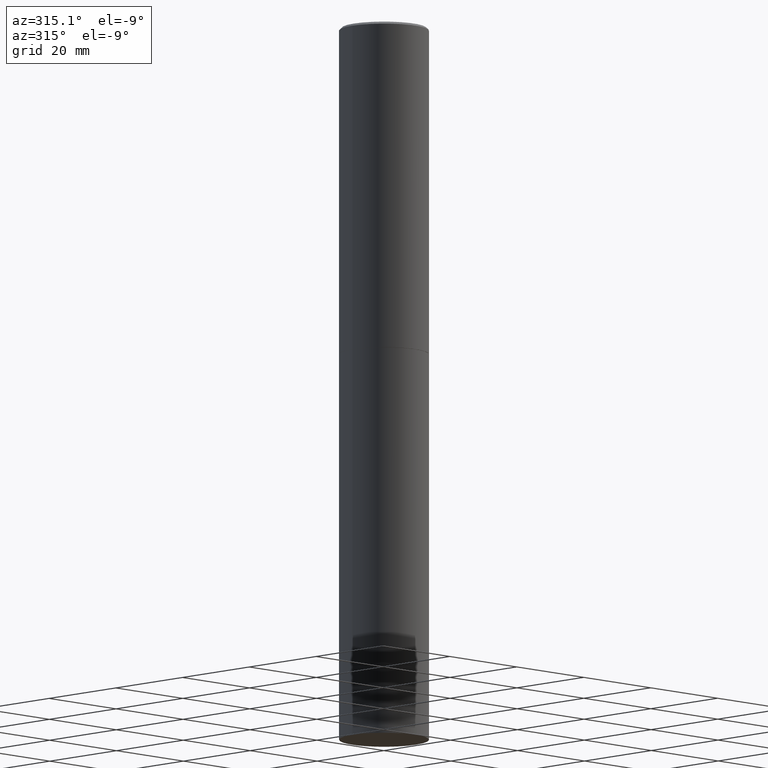
[diagram: clean part render]
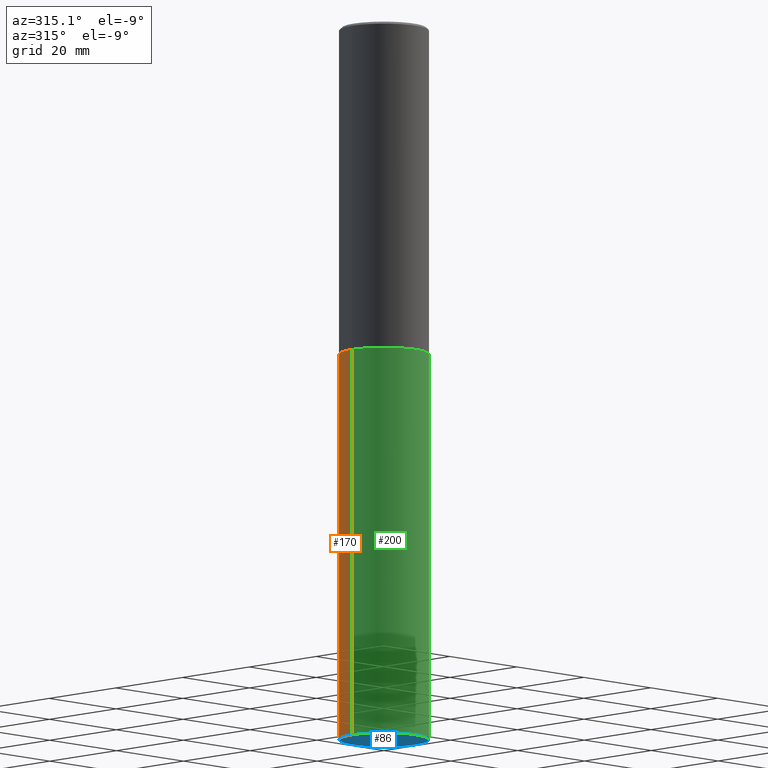
[diagram: same view with three faces highlighted in distinct colors, each labeled with its STEP entity id]
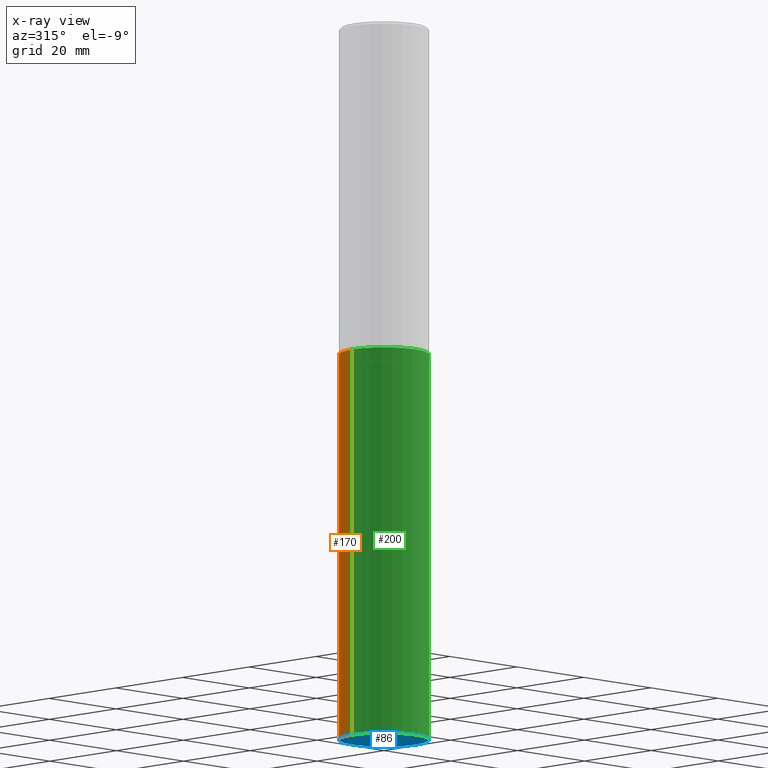
[diagram: x-ray of the same camera — body ghosted, the three highlighted faces saturated]
A machine part, auxiliary view with three faces highlighted in distinct colors.
The next image is the same camera in x-ray (body ghosted, the three faces saturated) — at least one of them is partly hidden behind the body in this view.
Their STEP definitions:

[orange] entity #170 — the highlighted cylindrical surface (partial cylindrical patch) has radius 9.525 mm, axis along (-0, 0, 1).
#1 = EDGE_CURVE ( 'NONE', #173, #246, #187, .T. ) ;
#12 = AXIS2_PLACEMENT_3D ( 'NONE', #132, #328, #108 ) ;
#22 = ORIENTED_EDGE ( 'NONE', *, *, #1, .T. ) ;
#24 = AXIS2_PLACEMENT_3D ( 'NONE', #232, #67, #288 ) ;
#31 = ORIENTED_EDGE ( 'NONE', *, *, #116, .F. ) ;
#32 = VECTOR ( 'NONE', #100, 39.37007874015748143 ) ;
#41 = EDGE_LOOP ( 'NONE', ( #22, #205, #158, #31 ) ) ;
#45 = DIRECTION ( 'NONE',  ( 1.000000000000000000, -6.982962677686265922E-15, 4.876176775795935793E-29 ) ) ;
#62 = EDGE_CURVE ( 'NONE', #246, #344, #126, .T. ) ;
#67 = DIRECTION ( 'NONE',  ( -2.445468806185136597E-29, 3.491481338843145583E-15, 1.000000000000000000 ) ) ;
#71 = CARTESIAN_POINT ( 'NONE',  ( 0.3750000000000000555, -2.356749903719122272E-14, -6.000000000000000888 ) ) ;
#94 = EDGE_CURVE ( 'NONE', #363, #344, #235, .T. ) ;
#100 = DIRECTION ( 'NONE',  ( -2.445468806185136877E-29, 3.491481338843145188E-15, 1.000000000000000000 ) ) ;
#108 = DIRECTION ( 'NONE',  ( 1.000000000000000000, -6.982962677686266711E-15, 0.000000000000000000 ) ) ;
#111 = LINE ( 'NONE', #242, #343 ) ;
#116 = EDGE_CURVE ( 'NONE', #173, #363, #111, .T. ) ;
#126 = LINE ( 'NONE', #237, #32 ) ;
#132 = CARTESIAN_POINT ( 'NONE',  ( 6.725039217009124520E-29, -9.601573681818649859E-15, -2.750000000000000000 ) ) ;
#158 = ORIENTED_EDGE ( 'NONE', *, *, #94, .F. ) ;
#159 = CYLINDRICAL_SURFACE ( 'NONE', #203, 0.3750000000000000555 ) ;
#162 = CARTESIAN_POINT ( 'NONE',  ( 0.3750000000000000555, -1.222018468595100145E-14, -2.750000000000000000 ) ) ;
#170 = ADVANCED_FACE ( 'NONE', ( #361 ), #159, .T. ) ;
#173 = VERTEX_POINT ( 'NONE', #71 ) ;
#187 = CIRCLE ( 'NONE', #24, 0.3750000000000000555 ) ;
#203 = AXIS2_PLACEMENT_3D ( 'NONE', #362, #326, #45 ) ;
#205 = ORIENTED_EDGE ( 'NONE', *, *, #62, .T. ) ;
#232 = CARTESIAN_POINT ( 'NONE',  ( 1.467281283711081958E-28, -2.094888803305887271E-14, -6.000000000000000888 ) ) ;
#235 = CIRCLE ( 'NONE', #12, 0.3750000000000000555 ) ;
#237 = CARTESIAN_POINT ( 'NONE',  ( -0.3750000000000000555, 2.664535259100376091E-15, -1.844600658845589598E-29 ) ) ;
#239 = DIRECTION ( 'NONE',  ( -2.445468806185136877E-29, 3.491481338843145188E-15, 1.000000000000000000 ) ) ;
#242 = CARTESIAN_POINT ( 'NONE',  ( 0.3750000000000000555, -2.618611004132350016E-15, 1.828566290923476203E-29 ) ) ;
#246 = VERTEX_POINT ( 'NONE', #292 ) ;
#288 = DIRECTION ( 'NONE',  ( 1.000000000000000000, -6.982962677686261189E-15, 0.000000000000000000 ) ) ;
#292 = CARTESIAN_POINT ( 'NONE',  ( -0.3750000000000000555, -1.261069559833838480E-14, -6.000000000000000888 ) ) ;
#318 = CARTESIAN_POINT ( 'NONE',  ( -0.3750000000000000555, -1.261069559833838480E-14, -2.750000000000000000 ) ) ;
#326 = DIRECTION ( 'NONE',  ( -2.445468806185136597E-29, 3.491481338843145583E-15, 1.000000000000000000 ) ) ;
#328 = DIRECTION ( 'NONE',  ( -2.445468806185136597E-29, 3.491481338843145583E-15, 1.000000000000000000 ) ) ;
#343 = VECTOR ( 'NONE', #239, 39.37007874015748143 ) ;
#344 = VERTEX_POINT ( 'NONE', #318 ) ;
#361 = FACE_OUTER_BOUND ( 'NONE', #41, .T. ) ;
#362 = CARTESIAN_POINT ( 'NONE',  ( 0.000000000000000000, 0.000000000000000000, 0.000000000000000000 ) ) ;
#363 = VERTEX_POINT ( 'NONE', #162 ) ;

[blue] entity #86 — the highlighted planar face has unit normal (0, -0, -1).
#1 = EDGE_CURVE ( 'NONE', #173, #246, #187, .T. ) ;
#24 = AXIS2_PLACEMENT_3D ( 'NONE', #232, #67, #288 ) ;
#67 = DIRECTION ( 'NONE',  ( -2.445468806185136597E-29, 3.491481338843145583E-15, 1.000000000000000000 ) ) ;
#71 = CARTESIAN_POINT ( 'NONE',  ( 0.3750000000000000555, -2.356749903719122272E-14, -6.000000000000000888 ) ) ;
#73 = DIRECTION ( 'NONE',  ( -2.445468806185136597E-29, 3.491481338843145583E-15, 1.000000000000000000 ) ) ;
#86 = ADVANCED_FACE ( 'NONE', ( #106 ), #103, .T. ) ;
#88 = AXIS2_PLACEMENT_3D ( 'NONE', #184, #212, #216 ) ;
#101 = DIRECTION ( 'NONE',  ( 1.000000000000000000, -6.982962677686261189E-15, 0.000000000000000000 ) ) ;
#103 = PLANE ( 'NONE',  #88 ) ;
#106 = FACE_OUTER_BOUND ( 'NONE', #324, .T. ) ;
#143 = AXIS2_PLACEMENT_3D ( 'NONE', #290, #73, #101 ) ;
#173 = VERTEX_POINT ( 'NONE', #71 ) ;
#175 = ORIENTED_EDGE ( 'NONE', *, *, #1, .F. ) ;
#184 = CARTESIAN_POINT ( 'NONE',  ( 2.618611004132496745E-15, 0.3749999999999790723, -6.000000000000001776 ) ) ;
#187 = CIRCLE ( 'NONE', #24, 0.3750000000000000555 ) ;
#212 = DIRECTION ( 'NONE',  ( 2.438088387897960049E-29, -3.491481338843145188E-15, -1.000000000000000000 ) ) ;
#216 = DIRECTION ( 'NONE',  ( -1.000000000000000000, 6.982962677686265922E-15, -4.876176775795935793E-29 ) ) ;
#232 = CARTESIAN_POINT ( 'NONE',  ( 1.467281283711081958E-28, -2.094888803305887271E-14, -6.000000000000000888 ) ) ;
#246 = VERTEX_POINT ( 'NONE', #292 ) ;
#250 = EDGE_CURVE ( 'NONE', #246, #173, #317, .T. ) ;
#288 = DIRECTION ( 'NONE',  ( 1.000000000000000000, -6.982962677686261189E-15, 0.000000000000000000 ) ) ;
#290 = CARTESIAN_POINT ( 'NONE',  ( 1.467281283711081958E-28, -2.094888803305887271E-14, -6.000000000000000888 ) ) ;
#292 = CARTESIAN_POINT ( 'NONE',  ( -0.3750000000000000555, -1.261069559833838480E-14, -6.000000000000000888 ) ) ;
#317 = CIRCLE ( 'NONE', #143, 0.3750000000000000555 ) ;
#319 = ORIENTED_EDGE ( 'NONE', *, *, #250, .F. ) ;
#324 = EDGE_LOOP ( 'NONE', ( #175, #319 ) ) ;

[green] entity #200 — the highlighted cylindrical surface (partial cylindrical patch) has radius 9.525 mm, axis along (-0, 0, 1).
#2 = DIRECTION ( 'NONE',  ( -2.445468806185136597E-29, 3.491481338843145583E-15, 1.000000000000000000 ) ) ;
#7 = CIRCLE ( 'NONE', #271, 0.3750000000000000555 ) ;
#16 = DIRECTION ( 'NONE',  ( 1.000000000000000000, -6.982962677686266711E-15, 0.000000000000000000 ) ) ;
#32 = VECTOR ( 'NONE', #100, 39.37007874015748143 ) ;
#62 = EDGE_CURVE ( 'NONE', #246, #344, #126, .T. ) ;
#71 = CARTESIAN_POINT ( 'NONE',  ( 0.3750000000000000555, -2.356749903719122272E-14, -6.000000000000000888 ) ) ;
#73 = DIRECTION ( 'NONE',  ( -2.445468806185136597E-29, 3.491481338843145583E-15, 1.000000000000000000 ) ) ;
#90 = ORIENTED_EDGE ( 'NONE', *, *, #250, .T. ) ;
#95 = EDGE_LOOP ( 'NONE', ( #121, #90, #286, #332 ) ) ;
#100 = DIRECTION ( 'NONE',  ( -2.445468806185136877E-29, 3.491481338843145188E-15, 1.000000000000000000 ) ) ;
#101 = DIRECTION ( 'NONE',  ( 1.000000000000000000, -6.982962677686261189E-15, 0.000000000000000000 ) ) ;
#102 = AXIS2_PLACEMENT_3D ( 'NONE', #298, #155, #277 ) ;
#111 = LINE ( 'NONE', #242, #343 ) ;
#116 = EDGE_CURVE ( 'NONE', #173, #363, #111, .T. ) ;
#121 = ORIENTED_EDGE ( 'NONE', *, *, #62, .F. ) ;
#126 = LINE ( 'NONE', #237, #32 ) ;
#143 = AXIS2_PLACEMENT_3D ( 'NONE', #290, #73, #101 ) ;
#155 = DIRECTION ( 'NONE',  ( -2.445468806185136597E-29, 3.491481338843145583E-15, 1.000000000000000000 ) ) ;
#157 = CYLINDRICAL_SURFACE ( 'NONE', #102, 0.3750000000000000555 ) ;
#162 = CARTESIAN_POINT ( 'NONE',  ( 0.3750000000000000555, -1.222018468595100145E-14, -2.750000000000000000 ) ) ;
#168 = EDGE_CURVE ( 'NONE', #344, #363, #7, .T. ) ;
#173 = VERTEX_POINT ( 'NONE', #71 ) ;
#200 = ADVANCED_FACE ( 'NONE', ( #304 ), #157, .T. ) ;
#237 = CARTESIAN_POINT ( 'NONE',  ( -0.3750000000000000555, 2.664535259100376091E-15, -1.844600658845589598E-29 ) ) ;
#239 = DIRECTION ( 'NONE',  ( -2.445468806185136877E-29, 3.491481338843145188E-15, 1.000000000000000000 ) ) ;
#242 = CARTESIAN_POINT ( 'NONE',  ( 0.3750000000000000555, -2.618611004132350016E-15, 1.828566290923476203E-29 ) ) ;
#243 = CARTESIAN_POINT ( 'NONE',  ( 6.725039217009124520E-29, -9.601573681818649859E-15, -2.750000000000000000 ) ) ;
#246 = VERTEX_POINT ( 'NONE', #292 ) ;
#250 = EDGE_CURVE ( 'NONE', #246, #173, #317, .T. ) ;
#271 = AXIS2_PLACEMENT_3D ( 'NONE', #243, #2, #16 ) ;
#277 = DIRECTION ( 'NONE',  ( 1.000000000000000000, -6.982962677686265922E-15, 4.876176775795935793E-29 ) ) ;
#286 = ORIENTED_EDGE ( 'NONE', *, *, #116, .T. ) ;
#290 = CARTESIAN_POINT ( 'NONE',  ( 1.467281283711081958E-28, -2.094888803305887271E-14, -6.000000000000000888 ) ) ;
#292 = CARTESIAN_POINT ( 'NONE',  ( -0.3750000000000000555, -1.261069559833838480E-14, -6.000000000000000888 ) ) ;
#298 = CARTESIAN_POINT ( 'NONE',  ( 0.000000000000000000, 0.000000000000000000, 0.000000000000000000 ) ) ;
#304 = FACE_OUTER_BOUND ( 'NONE', #95, .T. ) ;
#317 = CIRCLE ( 'NONE', #143, 0.3750000000000000555 ) ;
#318 = CARTESIAN_POINT ( 'NONE',  ( -0.3750000000000000555, -1.261069559833838480E-14, -2.750000000000000000 ) ) ;
#332 = ORIENTED_EDGE ( 'NONE', *, *, #168, .F. ) ;
#343 = VECTOR ( 'NONE', #239, 39.37007874015748143 ) ;
#344 = VERTEX_POINT ( 'NONE', #318 ) ;
#363 = VERTEX_POINT ( 'NONE', #162 ) ;